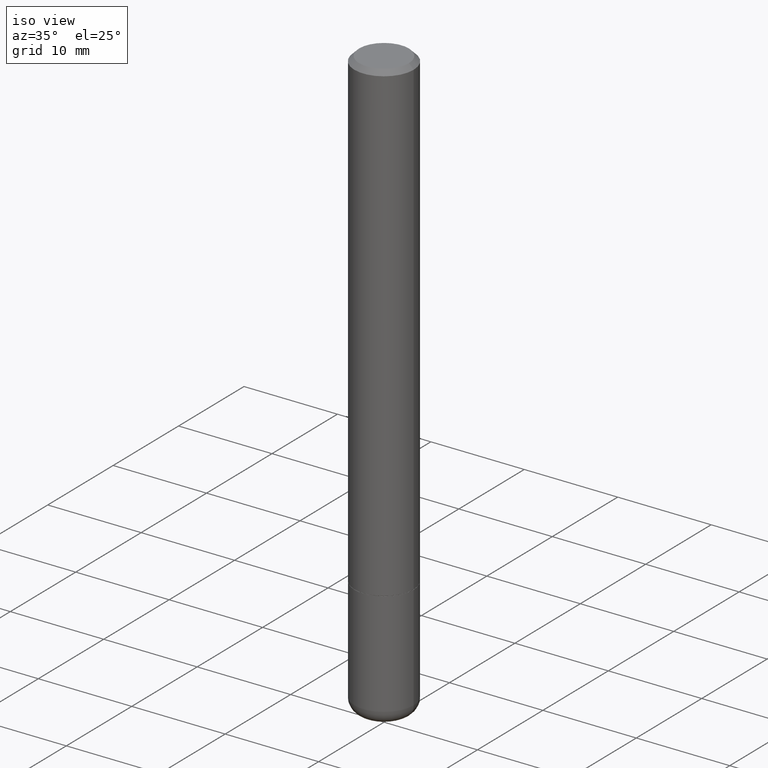
[diagram: clean part render]
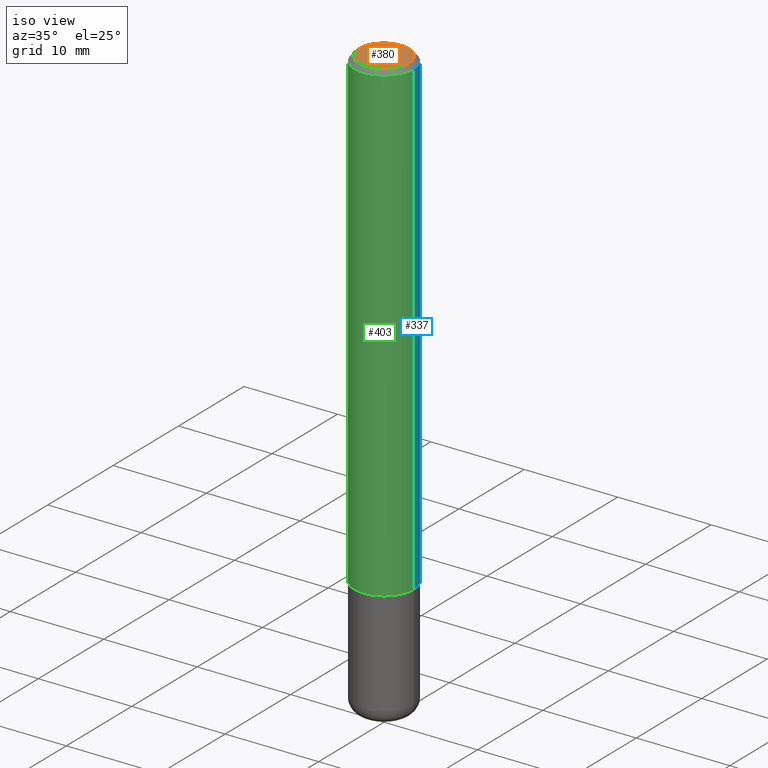
[diagram: same view with three faces highlighted in distinct colors, each labeled with its STEP entity id]
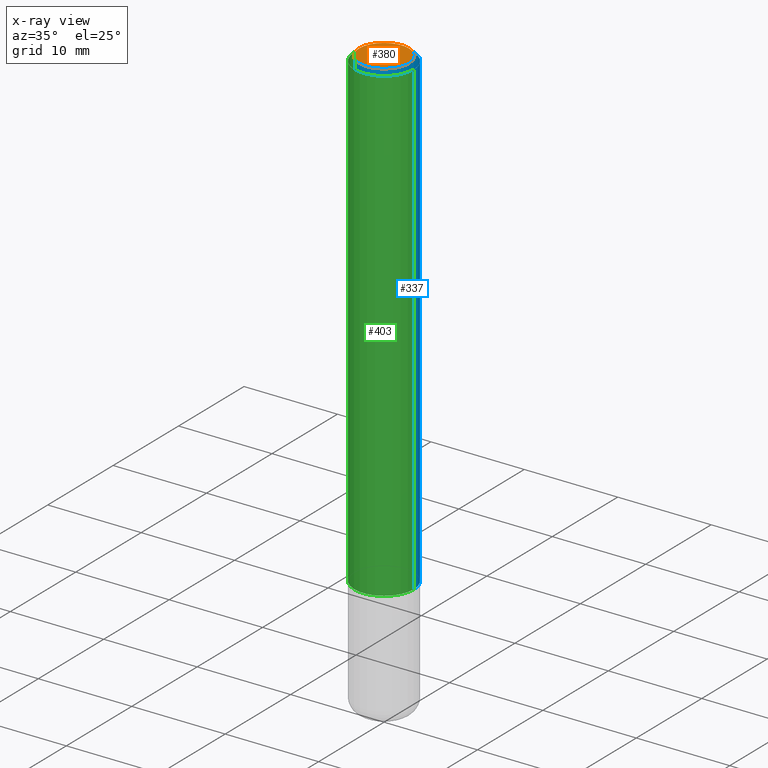
[diagram: x-ray of the same camera — body ghosted, the three highlighted faces saturated]
A machine part, iso view with three faces highlighted in distinct colors.
The next image is the same camera in x-ray (body ghosted, the three faces saturated) — at least one of them is partly hidden behind the body in this view.
Their STEP definitions:

[orange] entity #380 — the highlighted planar face has unit normal (0, -0, -1).
#10 = ORIENTED_EDGE ( 'NONE', *, *, #364, .T. ) ;
#12 = VERTEX_POINT ( 'NONE', #234 ) ;
#44 = FACE_OUTER_BOUND ( 'NONE', #160, .T. ) ;
#53 = DIRECTION ( 'NONE',  ( 1.000000000000000000, -6.982962677686265922E-15, 4.876206205277392908E-29 ) ) ;
#76 = AXIS2_PLACEMENT_3D ( 'NONE', #355, #157, #53 ) ;
#83 = DIRECTION ( 'NONE',  ( -1.000000000000000000, 6.982962677686265922E-15, -4.876176775795935793E-29 ) ) ;
#107 = CARTESIAN_POINT ( 'NONE',  ( 7.332110811570580243E-16, 0.1050000000000000239, -3.730083093136809834E-16 ) ) ;
#111 = DIRECTION ( 'NONE',  ( -2.445468806185136597E-29, 3.491481338843145583E-15, 1.000000000000000000 ) ) ;
#124 = AXIS2_PLACEMENT_3D ( 'NONE', #107, #230, #83 ) ;
#140 = PLANE ( 'NONE',  #124 ) ;
#157 = DIRECTION ( 'NONE',  ( -2.445468806185136597E-29, 3.491481338843145583E-15, 1.000000000000000000 ) ) ;
#160 = EDGE_LOOP ( 'NONE', ( #199, #10 ) ) ;
#181 = CARTESIAN_POINT ( 'NONE',  ( -0.1050000000000000239, 7.681258945454891804E-16, -1.280553747030648315E-17 ) ) ;
#182 = CIRCLE ( 'NONE', #353, 0.1050000000000000239 ) ;
#199 = ORIENTED_EDGE ( 'NONE', *, *, #313, .T. ) ;
#230 = DIRECTION ( 'NONE',  ( 2.438088387897960049E-29, -3.491481338843145188E-15, -1.000000000000000000 ) ) ;
#234 = CARTESIAN_POINT ( 'NONE',  ( 0.1050000000000000239, -8.238720831321576644E-16, -1.280553747029579039E-17 ) ) ;
#240 = DIRECTION ( 'NONE',  ( 1.000000000000000000, -6.982962677686265922E-15, 4.876206205277392908E-29 ) ) ;
#260 = VERTEX_POINT ( 'NONE', #181 ) ;
#313 = EDGE_CURVE ( 'NONE', #260, #12, #182, .T. ) ;
#353 = AXIS2_PLACEMENT_3D ( 'NONE', #386, #111, #240 ) ;
#355 = CARTESIAN_POINT ( 'NONE',  ( 3.131554243005659264E-46, -4.471029511141341874E-32, -1.280553747030123384E-17 ) ) ;
#364 = EDGE_CURVE ( 'NONE', #12, #260, #366, .T. ) ;
#366 = CIRCLE ( 'NONE', #76, 0.1050000000000000239 ) ;
#380 = ADVANCED_FACE ( 'NONE', ( #44 ), #140, .F. ) ;
#386 = CARTESIAN_POINT ( 'NONE',  ( 3.131554243005659264E-46, -4.471029511141341874E-32, -1.280553747030123384E-17 ) ) ;

[blue] entity #337 — the highlighted cylindrical surface (edge-blend (fillet) strip) has radius 3.175 mm, axis along (-0, 0, 1).
#1 = DIRECTION ( 'NONE',  ( 1.000000000000000000, -6.982962677686266711E-15, 0.000000000000000000 ) ) ;
#5 = CYLINDRICAL_SURFACE ( 'NONE', #156, 0.1250000000000001110 ) ;
#27 = AXIS2_PLACEMENT_3D ( 'NONE', #28, #215, #1 ) ;
#28 = CARTESIAN_POINT ( 'NONE',  ( 4.890937612370279289E-31, -6.982962677686299005E-17, -0.02000000000000002470 ) ) ;
#30 = VERTEX_POINT ( 'NONE', #326 ) ;
#34 = EDGE_LOOP ( 'NONE', ( #346, #226, #410, #408 ) ) ;
#47 = VERTEX_POINT ( 'NONE', #126 ) ;
#69 = VERTEX_POINT ( 'NONE', #350 ) ;
#98 = AXIS2_PLACEMENT_3D ( 'NONE', #129, #359, #256 ) ;
#122 = EDGE_CURVE ( 'NONE', #69, #47, #235, .T. ) ;
#125 = CARTESIAN_POINT ( 'NONE',  ( 0.000000000000000000, 0.000000000000000000, 0.000000000000000000 ) ) ;
#126 = CARTESIAN_POINT ( 'NONE',  ( -0.1250000000000002498, -2.636471991862024185E-15, -1.998999999999999888 ) ) ;
#129 = CARTESIAN_POINT ( 'NONE',  ( 4.888492143564087591E-29, -6.979471196347447369E-15, -1.998999999999999888 ) ) ;
#137 = VECTOR ( 'NONE', #373, 39.37007874015748143 ) ;
#156 = AXIS2_PLACEMENT_3D ( 'NONE', #125, #385, #219 ) ;
#158 = LINE ( 'NONE', #281, #201 ) ;
#169 = EDGE_CURVE ( 'NONE', #69, #404, #158, .T. ) ;
#201 = VECTOR ( 'NONE', #228, 39.37007874015748143 ) ;
#206 = CARTESIAN_POINT ( 'NONE',  ( -0.1250000000000001110, 8.881784197001260212E-16, -6.148668862818637832E-30 ) ) ;
#215 = DIRECTION ( 'NONE',  ( -2.445468806185136597E-29, 3.491481338843145583E-15, 1.000000000000000000 ) ) ;
#219 = DIRECTION ( 'NONE',  ( 1.000000000000000000, -6.982962677686266711E-15, 4.876176775795935232E-29 ) ) ;
#226 = ORIENTED_EDGE ( 'NONE', *, *, #409, .T. ) ;
#228 = DIRECTION ( 'NONE',  ( -2.445468806185136877E-29, 3.491481338843145188E-15, 1.000000000000000000 ) ) ;
#235 = CIRCLE ( 'NONE', #98, 0.1250000000000002498 ) ;
#256 = DIRECTION ( 'NONE',  ( 1.000000000000000000, -6.982962677686264344E-15, 0.000000000000000000 ) ) ;
#267 = EDGE_CURVE ( 'NONE', #404, #30, #402, .T. ) ;
#281 = CARTESIAN_POINT ( 'NONE',  ( 0.1250000000000001110, -8.728703347107841277E-16, 6.095220969744924646E-30 ) ) ;
#316 = FACE_OUTER_BOUND ( 'NONE', #34, .T. ) ;
#323 = LINE ( 'NONE', #206, #137 ) ;
#326 = CARTESIAN_POINT ( 'NONE',  ( -0.1249999999999999861, 8.030407079339202378E-16, -0.02000000000000002470 ) ) ;
#333 = CARTESIAN_POINT ( 'NONE',  ( 0.1249999999999999861, -9.273918764983043491E-16, -0.02000000000000002470 ) ) ;
#337 = ADVANCED_FACE ( 'NONE', ( #316 ), #5, .T. ) ;
#346 = ORIENTED_EDGE ( 'NONE', *, *, #122, .T. ) ;
#350 = CARTESIAN_POINT ( 'NONE',  ( 0.1250000000000002498, -7.852341531058232286E-15, -1.998999999999999888 ) ) ;
#359 = DIRECTION ( 'NONE',  ( -2.445468806185136597E-29, 3.491481338843145583E-15, 1.000000000000000000 ) ) ;
#373 = DIRECTION ( 'NONE',  ( -2.445468806185136877E-29, 3.491481338843145188E-15, 1.000000000000000000 ) ) ;
#385 = DIRECTION ( 'NONE',  ( -2.445468806185136597E-29, 3.491481338843145583E-15, 1.000000000000000000 ) ) ;
#402 = CIRCLE ( 'NONE', #27, 0.1249999999999999861 ) ;
#404 = VERTEX_POINT ( 'NONE', #333 ) ;
#408 = ORIENTED_EDGE ( 'NONE', *, *, #169, .F. ) ;
#409 = EDGE_CURVE ( 'NONE', #47, #30, #323, .T. ) ;
#410 = ORIENTED_EDGE ( 'NONE', *, *, #267, .F. ) ;

[green] entity #403 — the highlighted cylindrical surface (edge-blend (fillet) strip) has radius 3.175 mm, axis along (-0, 0, 1).
#3 = AXIS2_PLACEMENT_3D ( 'NONE', #9, #312, #36 ) ;
#4 = ORIENTED_EDGE ( 'NONE', *, *, #116, .F. ) ;
#9 = CARTESIAN_POINT ( 'NONE',  ( 4.890937612370279289E-31, -6.982962677686299005E-17, -0.02000000000000002470 ) ) ;
#30 = VERTEX_POINT ( 'NONE', #326 ) ;
#36 = DIRECTION ( 'NONE',  ( 1.000000000000000000, -6.982962677686266711E-15, 0.000000000000000000 ) ) ;
#47 = VERTEX_POINT ( 'NONE', #126 ) ;
#50 = EDGE_CURVE ( 'NONE', #47, #69, #238, .T. ) ;
#63 = EDGE_LOOP ( 'NONE', ( #79, #342, #101, #4 ) ) ;
#69 = VERTEX_POINT ( 'NONE', #350 ) ;
#71 = CARTESIAN_POINT ( 'NONE',  ( 4.888492143564087591E-29, -6.979471196347447369E-15, -1.998999999999999888 ) ) ;
#79 = ORIENTED_EDGE ( 'NONE', *, *, #409, .F. ) ;
#101 = ORIENTED_EDGE ( 'NONE', *, *, #169, .T. ) ;
#115 = CYLINDRICAL_SURFACE ( 'NONE', #390, 0.1250000000000001110 ) ;
#116 = EDGE_CURVE ( 'NONE', #30, #404, #295, .T. ) ;
#126 = CARTESIAN_POINT ( 'NONE',  ( -0.1250000000000002498, -2.636471991862024185E-15, -1.998999999999999888 ) ) ;
#137 = VECTOR ( 'NONE', #373, 39.37007874015748143 ) ;
#148 = DIRECTION ( 'NONE',  ( -2.445468806185136597E-29, 3.491481338843145583E-15, 1.000000000000000000 ) ) ;
#158 = LINE ( 'NONE', #281, #201 ) ;
#169 = EDGE_CURVE ( 'NONE', #69, #404, #158, .T. ) ;
#176 = DIRECTION ( 'NONE',  ( 1.000000000000000000, -6.982962677686266711E-15, 4.876176775795935232E-29 ) ) ;
#198 = CARTESIAN_POINT ( 'NONE',  ( 0.000000000000000000, 0.000000000000000000, 0.000000000000000000 ) ) ;
#201 = VECTOR ( 'NONE', #228, 39.37007874015748143 ) ;
#203 = FACE_OUTER_BOUND ( 'NONE', #63, .T. ) ;
#206 = CARTESIAN_POINT ( 'NONE',  ( -0.1250000000000001110, 8.881784197001260212E-16, -6.148668862818637832E-30 ) ) ;
#216 = AXIS2_PLACEMENT_3D ( 'NONE', #71, #233, #362 ) ;
#228 = DIRECTION ( 'NONE',  ( -2.445468806185136877E-29, 3.491481338843145188E-15, 1.000000000000000000 ) ) ;
#233 = DIRECTION ( 'NONE',  ( -2.445468806185136597E-29, 3.491481338843145583E-15, 1.000000000000000000 ) ) ;
#238 = CIRCLE ( 'NONE', #216, 0.1250000000000002498 ) ;
#281 = CARTESIAN_POINT ( 'NONE',  ( 0.1250000000000001110, -8.728703347107841277E-16, 6.095220969744924646E-30 ) ) ;
#295 = CIRCLE ( 'NONE', #3, 0.1249999999999999861 ) ;
#312 = DIRECTION ( 'NONE',  ( -2.445468806185136597E-29, 3.491481338843145583E-15, 1.000000000000000000 ) ) ;
#323 = LINE ( 'NONE', #206, #137 ) ;
#326 = CARTESIAN_POINT ( 'NONE',  ( -0.1249999999999999861, 8.030407079339202378E-16, -0.02000000000000002470 ) ) ;
#333 = CARTESIAN_POINT ( 'NONE',  ( 0.1249999999999999861, -9.273918764983043491E-16, -0.02000000000000002470 ) ) ;
#342 = ORIENTED_EDGE ( 'NONE', *, *, #50, .T. ) ;
#350 = CARTESIAN_POINT ( 'NONE',  ( 0.1250000000000002498, -7.852341531058232286E-15, -1.998999999999999888 ) ) ;
#362 = DIRECTION ( 'NONE',  ( 1.000000000000000000, -6.982962677686264344E-15, 0.000000000000000000 ) ) ;
#373 = DIRECTION ( 'NONE',  ( -2.445468806185136877E-29, 3.491481338843145188E-15, 1.000000000000000000 ) ) ;
#390 = AXIS2_PLACEMENT_3D ( 'NONE', #198, #148, #176 ) ;
#403 = ADVANCED_FACE ( 'NONE', ( #203 ), #115, .T. ) ;
#404 = VERTEX_POINT ( 'NONE', #333 ) ;
#409 = EDGE_CURVE ( 'NONE', #47, #30, #323, .T. ) ;